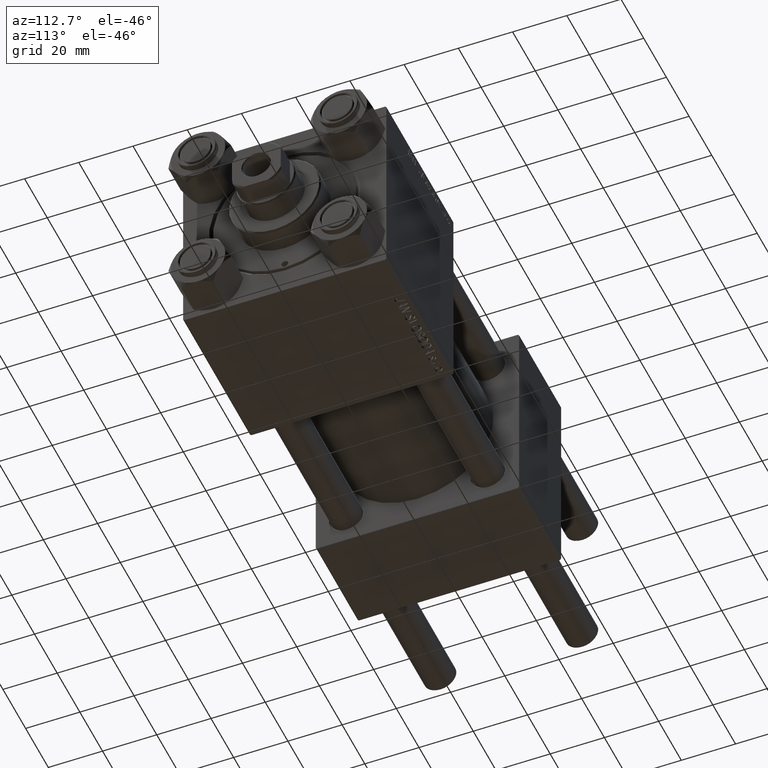
[diagram: clean part render]
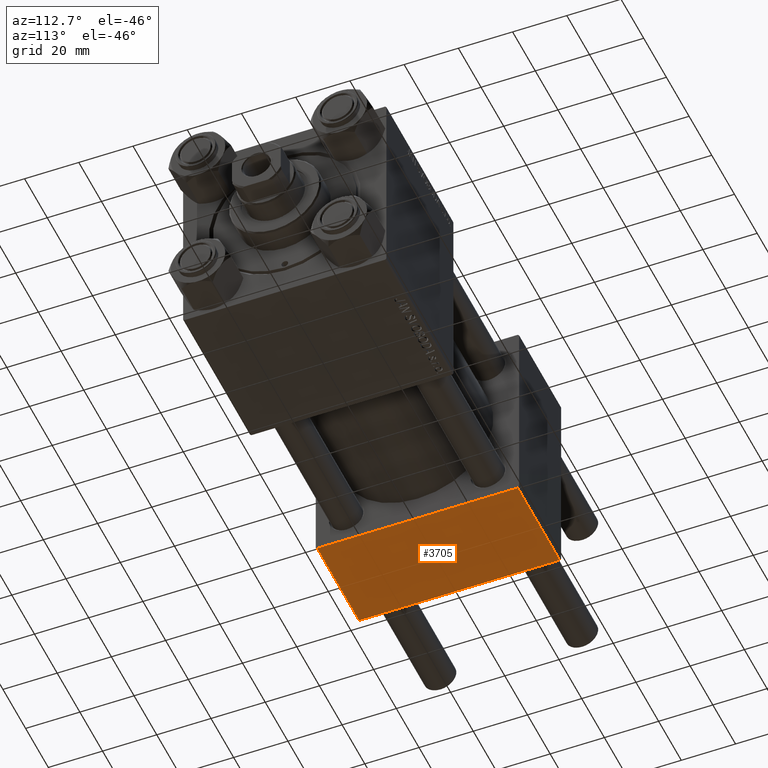
[diagram: same view with one face highlighted and labeled with its STEP entity id]
A machine part, auxiliary view. The second image highlights one B-rep face of the part: STEP entity #3705.
In plain terms, the highlighted planar face has unit normal (0, 0, -1).
Its self-contained STEP definition (entity closure, byte-faithful):
#66 = DIRECTION ( 'NONE',  ( 0.000000000000000000, -1.000000000000000000, -9.251858538542972814E-17 ) ) ;
#3705 = ADVANCED_FACE ( 'NONE', ( #28656 ), #5698, .T. ) ;
#3992 = LINE ( 'NONE', #34518, #11392 ) ;
#4712 = DIRECTION ( 'NONE',  ( 0.000000000000000000, 1.000000000000000000, 9.251858538542972814E-17 ) ) ;
#5698 = PLANE ( 'NONE',  #7924 ) ;
#6123 = ORIENTED_EDGE ( 'NONE', *, *, #11173, .F. ) ;
#6433 = ORIENTED_EDGE ( 'NONE', *, *, #22210, .T. ) ;
#6539 = CARTESIAN_POINT ( 'NONE',  ( 0.000000000000000000, 36.99999999999997868, -37.50000000000000000 ) ) ;
#7924 = AXIS2_PLACEMENT_3D ( 'NONE', #39274, #27923, #4712 ) ;
#11173 = EDGE_CURVE ( 'NONE', #32679, #45421, #11918, .T. ) ;
#11392 = VECTOR ( 'NONE', #19887, 1000.000000000000000 ) ;
#11428 = VECTOR ( 'NONE', #37442, 1000.000000000000000 ) ;
#11918 = LINE ( 'NONE', #27061, #48238 ) ;
#12603 = ORIENTED_EDGE ( 'NONE', *, *, #23472, .T. ) ;
#12929 = CARTESIAN_POINT ( 'NONE',  ( 37.00000000000000000, -37.00000000000002132, -37.50000000000000711 ) ) ;
#14603 = VERTEX_POINT ( 'NONE', #25392 ) ;
#19887 = DIRECTION ( 'NONE',  ( -1.000000000000000000, 0.000000000000000000, 0.000000000000000000 ) ) ;
#22210 = EDGE_CURVE ( 'NONE', #43555, #45421, #3992, .T. ) ;
#22259 = LINE ( 'NONE', #37644, #29411 ) ;
#23472 = EDGE_CURVE ( 'NONE', #14603, #43555, #30373, .T. ) ;
#25392 = CARTESIAN_POINT ( 'NONE',  ( 37.00000000000000000, 36.99999999999997868, -37.50000000000000000 ) ) ;
#25637 = EDGE_LOOP ( 'NONE', ( #6123, #39218, #12603, #6433 ) ) ;
#27061 = CARTESIAN_POINT ( 'NONE',  ( 0.000000000000000000, 37.49999999999999289, -37.50000000000000000 ) ) ;
#27923 = DIRECTION ( 'NONE',  ( 0.000000000000000000, 9.251858538542972814E-17, -1.000000000000000000 ) ) ;
#28656 = FACE_OUTER_BOUND ( 'NONE', #25637, .T. ) ;
#29411 = VECTOR ( 'NONE', #40679, 1000.000000000000000 ) ;
#29867 = CARTESIAN_POINT ( 'NONE',  ( 37.00000000000000000, 37.49999999999999289, -37.50000000000000000 ) ) ;
#30373 = LINE ( 'NONE', #29867, #11428 ) ;
#32679 = VERTEX_POINT ( 'NONE', #6539 ) ;
#34518 = CARTESIAN_POINT ( 'NONE',  ( 0.000000000000000000, -37.00000000000002132, -37.50000000000000711 ) ) ;
#35820 = EDGE_CURVE ( 'NONE', #32679, #14603, #22259, .T. ) ;
#37442 = DIRECTION ( 'NONE',  ( 0.000000000000000000, -1.000000000000000000, -9.251858538542972814E-17 ) ) ;
#37644 = CARTESIAN_POINT ( 'NONE',  ( 37.00000000000000000, 36.99999999999997868, -37.50000000000000000 ) ) ;
#39218 = ORIENTED_EDGE ( 'NONE', *, *, #35820, .T. ) ;
#39274 = CARTESIAN_POINT ( 'NONE',  ( 37.00000000000000000, 37.49999999999999289, -37.50000000000000000 ) ) ;
#40679 = DIRECTION ( 'NONE',  ( 1.000000000000000000, 0.000000000000000000, 0.000000000000000000 ) ) ;
#43555 = VERTEX_POINT ( 'NONE', #12929 ) ;
#45421 = VERTEX_POINT ( 'NONE', #46345 ) ;
#46345 = CARTESIAN_POINT ( 'NONE',  ( 0.000000000000000000, -37.00000000000002132, -37.50000000000000711 ) ) ;
#48238 = VECTOR ( 'NONE', #66, 1000.000000000000000 ) ;